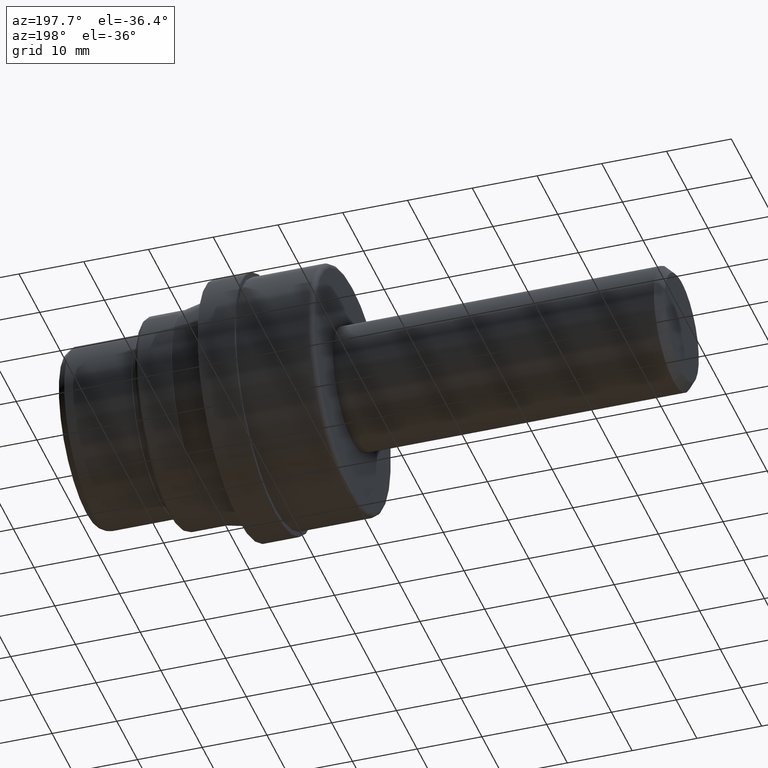
[diagram: clean part render]
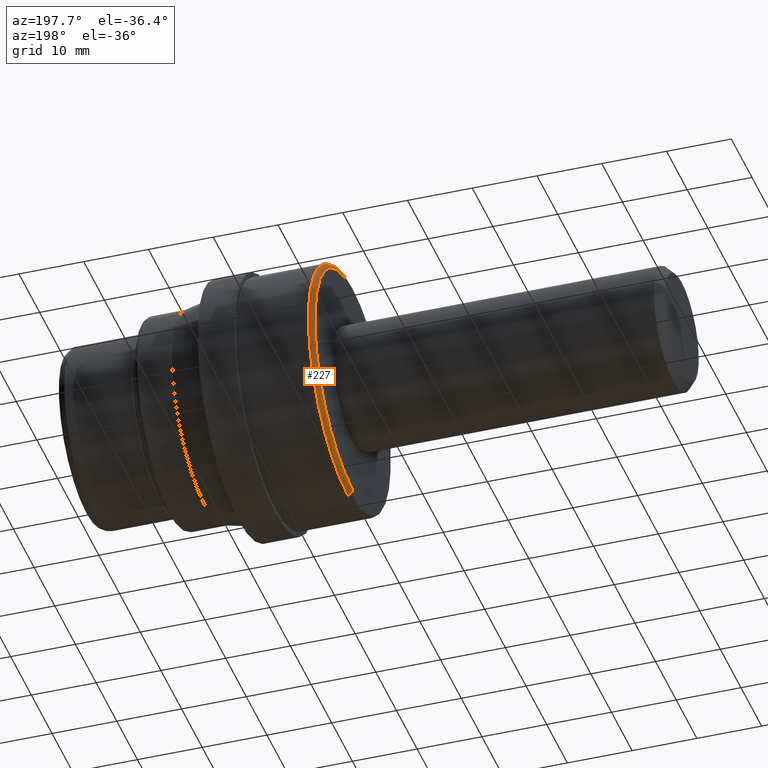
[diagram: same view with one face highlighted and labeled with its STEP entity id]
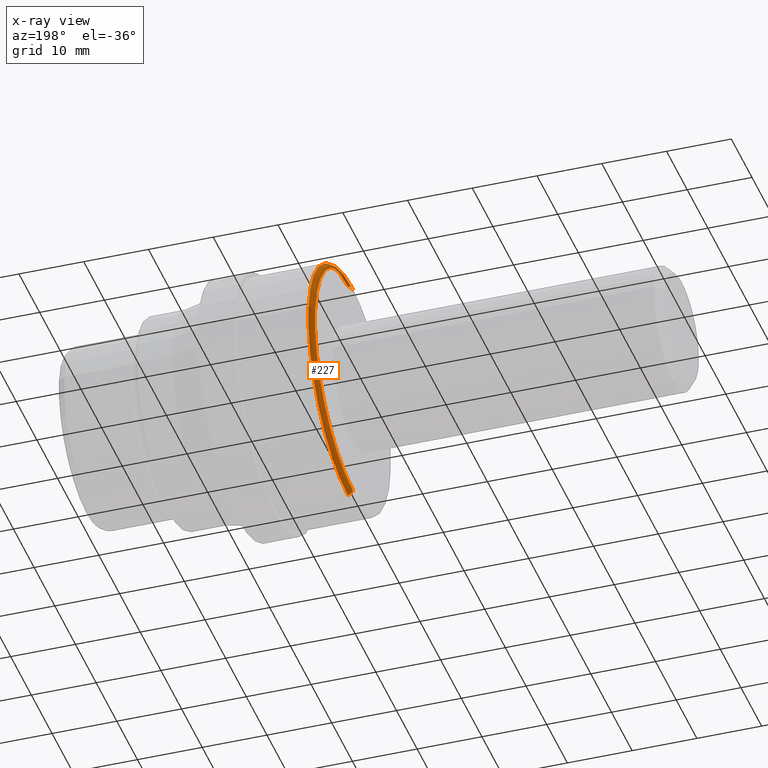
[diagram: x-ray of the same camera — body ghosted, the highlighted face saturated]
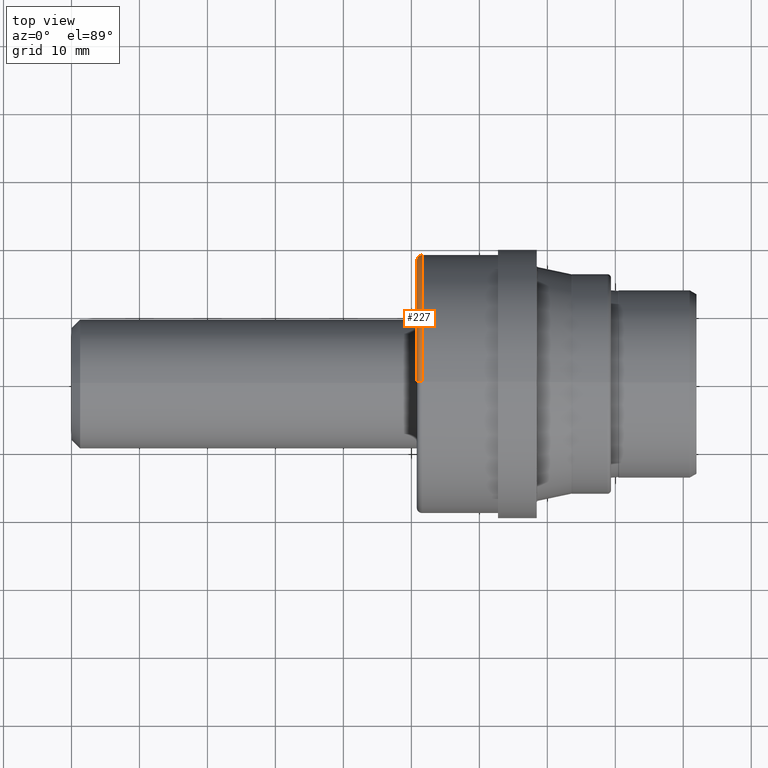
[diagram: same view with one face highlighted and labeled with its STEP entity id]
A machine part, auxiliary view. The second image highlights one B-rep face of the part: STEP entity #227.
The next image is the same camera in x-ray: the body ghosted, the highlighted face saturated — about 0% of this face is hidden behind the body in this view.
A second angle (top view) of the same face is appended — the face is thin or edge-on in the first view.
In plain terms, the highlighted toroidal blend (fillet) surface has major radius 18.288 mm and minor (blend) radius 0.762 mm.
Its self-contained STEP definition (entity closure, byte-faithful):
#1 = DIRECTION ( 'NONE',  ( -0.0000000000000000000, -1.000000000000000000, -0.0000000000000000000 ) ) ;
#4 = CARTESIAN_POINT ( 'NONE',  ( 2.000000000000000444, 0.0000000000000000000, 0.0000000000000000000 ) ) ;
#26 = CIRCLE ( 'NONE', #1040, 0.02999999999999995379 ) ;
#77 = DIRECTION ( 'NONE',  ( 0.0000000000000000000, 1.224646799147349756E-16, 1.000000000000000000 ) ) ;
#119 = AXIS2_PLACEMENT_3D ( 'NONE', #4, #479, #977 ) ;
#209 = CARTESIAN_POINT ( 'NONE',  ( 2.029999999999999805, 0.0000000000000000000, 0.0000000000000000000 ) ) ;
#227 = ADVANCED_FACE ( 'NONE', ( #798 ), #597, .T. ) ;
#233 = AXIS2_PLACEMENT_3D ( 'NONE', #557, #1, #474 ) ;
#305 = CIRCLE ( 'NONE', #550, 0.7499999999999998890 ) ;
#341 = CIRCLE ( 'NONE', #233, 0.02999999999999995379 ) ;
#388 = CARTESIAN_POINT ( 'NONE',  ( 2.029999999999999805, 8.817456953860943289E-17, 0.7199999999999999734 ) ) ;
#467 = DIRECTION ( 'NONE',  ( 1.000000000000000000, -0.0000000000000000000, -0.0000000000000000000 ) ) ;
#468 = CARTESIAN_POINT ( 'NONE',  ( 2.029999999999999805, 0.0000000000000000000, -0.7499999999999998890 ) ) ;
#474 = DIRECTION ( 'NONE',  ( 0.0000000000000000000, 0.0000000000000000000, -1.000000000000000000 ) ) ;
#479 = DIRECTION ( 'NONE',  ( 1.000000000000000000, -0.0000000000000000000, -0.0000000000000000000 ) ) ;
#480 = EDGE_CURVE ( 'NONE', #489, #659, #613, .T. ) ;
#489 = VERTEX_POINT ( 'NONE', #645 ) ;
#505 = EDGE_CURVE ( 'NONE', #489, #876, #341, .T. ) ;
#509 = EDGE_LOOP ( 'NONE', ( #986, #1035, #616, #903 ) ) ;
#548 = EDGE_CURVE ( 'NONE', #876, #695, #305, .T. ) ;
#550 = AXIS2_PLACEMENT_3D ( 'NONE', #1045, #467, #963 ) ;
#551 = DIRECTION ( 'NONE',  ( 0.0000000000000000000, 1.000000000000000000, -1.224646799147353207E-16 ) ) ;
#557 = CARTESIAN_POINT ( 'NONE',  ( 2.029999999999999805, 0.0000000000000000000, -0.7199999999999999734 ) ) ;
#597 = TOROIDAL_SURFACE ( 'NONE', #913, 0.7199999999999999734, 0.02999999999999988440 ) ;
#613 = CIRCLE ( 'NONE', #119, 0.7199999999999999734 ) ;
#616 = ORIENTED_EDGE ( 'NONE', *, *, #548, .F. ) ;
#624 = CARTESIAN_POINT ( 'NONE',  ( 2.000000000000000444, 9.001153973733045863E-17, 0.7199999999999999734 ) ) ;
#645 = CARTESIAN_POINT ( 'NONE',  ( 2.000000000000000444, 0.0000000000000000000, -0.7199999999999999734 ) ) ;
#659 = VERTEX_POINT ( 'NONE', #624 ) ;
#675 = DIRECTION ( 'NONE',  ( 0.0000000000000000000, 0.0000000000000000000, -1.000000000000000000 ) ) ;
#680 = DIRECTION ( 'NONE',  ( 1.000000000000000000, -0.0000000000000000000, -0.0000000000000000000 ) ) ;
#695 = VERTEX_POINT ( 'NONE', #1033 ) ;
#798 = FACE_OUTER_BOUND ( 'NONE', #509, .T. ) ;
#876 = VERTEX_POINT ( 'NONE', #468 ) ;
#903 = ORIENTED_EDGE ( 'NONE', *, *, #505, .F. ) ;
#913 = AXIS2_PLACEMENT_3D ( 'NONE', #209, #680, #675 ) ;
#915 = EDGE_CURVE ( 'NONE', #659, #695, #26, .T. ) ;
#963 = DIRECTION ( 'NONE',  ( 0.0000000000000000000, 0.0000000000000000000, -1.000000000000000000 ) ) ;
#977 = DIRECTION ( 'NONE',  ( 0.0000000000000000000, 0.0000000000000000000, -1.000000000000000000 ) ) ;
#986 = ORIENTED_EDGE ( 'NONE', *, *, #480, .T. ) ;
#1033 = CARTESIAN_POINT ( 'NONE',  ( 2.029999999999999805, 9.184850993605147205E-17, 0.7499999999999998890 ) ) ;
#1035 = ORIENTED_EDGE ( 'NONE', *, *, #915, .T. ) ;
#1040 = AXIS2_PLACEMENT_3D ( 'NONE', #388, #551, #77 ) ;
#1045 = CARTESIAN_POINT ( 'NONE',  ( 2.029999999999999805, 0.0000000000000000000, 0.0000000000000000000 ) ) ;